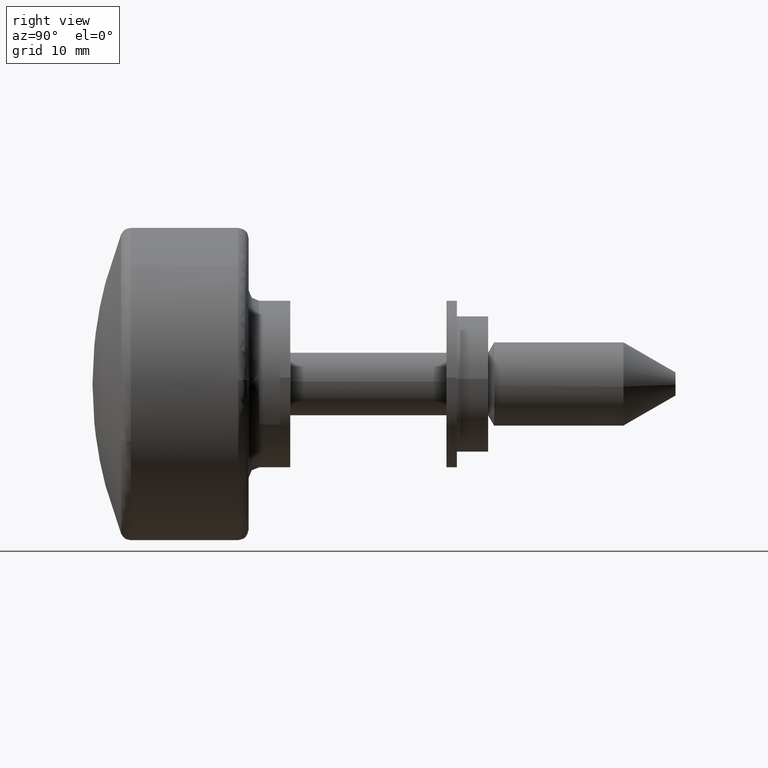
[diagram: clean part render]
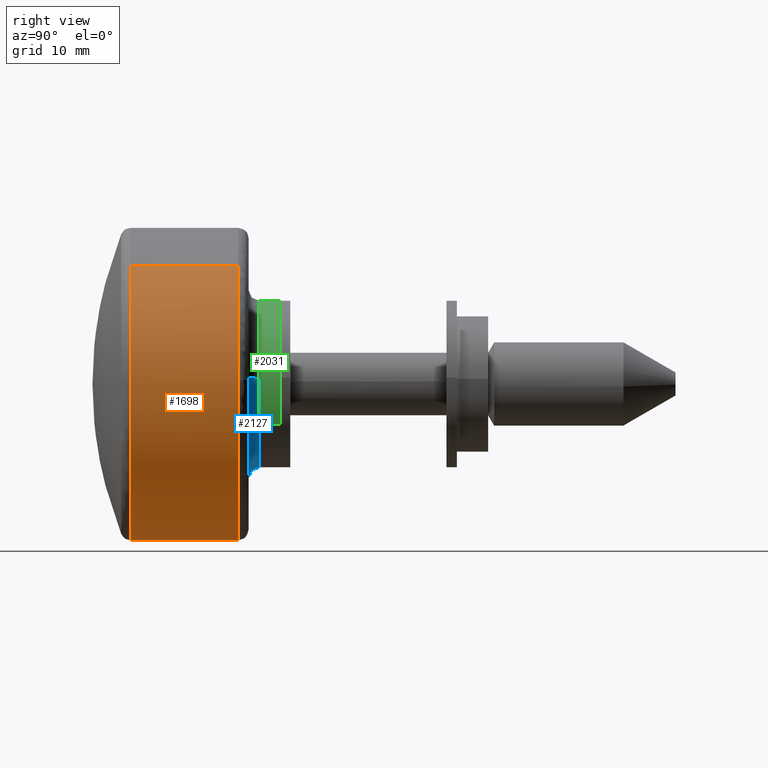
[diagram: same view with three faces highlighted in distinct colors, each labeled with its STEP entity id]
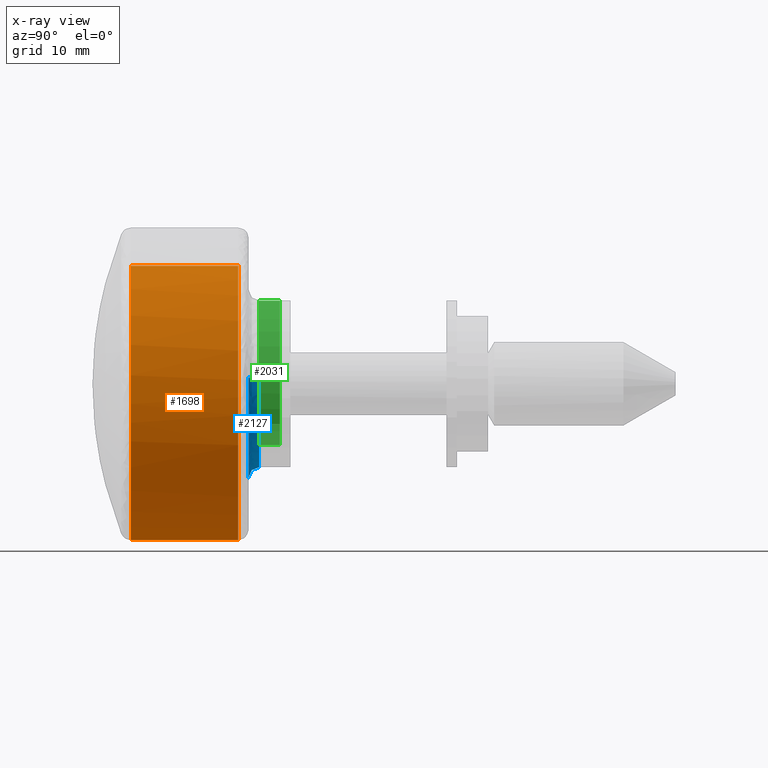
[diagram: x-ray of the same camera — body ghosted, the three highlighted faces saturated]
A machine part, right view with three faces highlighted in distinct colors.
The next image is the same camera in x-ray (body ghosted, the three faces saturated) — at least one of them is partly hidden behind the body in this view.
Their STEP definitions:

[orange] entity #1698 — the highlighted face is a freeform B-spline surface patch.
#1566=CARTESIAN_POINT('',(-14.585219552045698,-9.815094855040570,11.343011636534447));
#1567=CARTESIAN_POINT('',(-14.585219552045697,-10.472148208553696,10.774464129381920));
#1568=CARTESIAN_POINT('',(-14.585219552045690,-11.059160052151860,10.133853114234901));
#1569=CARTESIAN_POINT('',(-14.585219552045695,-21.193013166386756,-0.925306937916956));
#1570=CARTESIAN_POINT('',(-14.585219552045690,-10.133853114234901,-11.059160052151860));
#1571=CARTESIAN_POINT('',(-14.585219552045695,0.925306937916956,-21.193013166386756));
#1572=CARTESIAN_POINT('',(-14.585219552045690,11.059160052151860,-10.133853114234901));
#1573=CARTESIAN_POINT('',(-3.735369510892367,-9.815094855040570,11.343011636534447));
#1574=CARTESIAN_POINT('',(-3.735369510892367,-10.472148208553696,10.774464129381920));
#1575=CARTESIAN_POINT('',(-3.735369510892367,-11.059160052151860,10.133853114234901));
#1576=CARTESIAN_POINT('',(-3.735369510892367,-21.193013166386756,-0.925306937916956));
#1577=CARTESIAN_POINT('',(-3.735369510892367,-10.133853114234901,-11.059160052151860));
#1578=CARTESIAN_POINT('',(-3.735369510892367,0.925306937916956,-21.193013166386756));
#1579=CARTESIAN_POINT('',(-3.735369510892367,11.059160052151860,-10.133853114234901));
#1587=(BOUNDED_SURFACE()B_SPLINE_SURFACE(2,1,((#1566,#1573),(#1567,#1574),(#1568,#1575),(#1569,#1576),(#1570,#1577),(#1571,#1578),(#1572,#1579)),.UNSPECIFIED.,.F.,.F.,.U.)B_SPLINE_SURFACE_WITH_KNOTS((3,2,2,3),(2,2),(0.0,1.988225099390858,26.841038841776552,51.693852584162236),(0.0,10.849850041153330),.UNSPECIFIED.)GEOMETRIC_REPRESENTATION_ITEM()RATIONAL_B_SPLINE_SURFACE(((0.956886118190660,0.956886118190660),(0.976568542494924,0.976568542494924),(1.0,1.0),(0.707106781186548,0.707106781186548),(1.0,1.0),(0.707106781186548,0.707106781186548),(1.0,1.0)))REPRESENTATION_ITEM('')SURFACE());
#1588=CARTESIAN_POINT('',(-3.999999999700985,-14.995262839248941,0.376951431672074));
#1589=VERTEX_POINT('',#1588);
#1590=CARTESIAN_POINT('',(-3.999999999925209,-9.815093350540721,11.343012938373400));
#1591=VERTEX_POINT('',#1590);
#1592=CARTESIAN_POINT('',(-3.999999999700986,-14.995262839248941,0.376951431672074));
#1593=CARTESIAN_POINT('',(-3.999999999836512,-14.828652067788219,7.004787539563752));
#1594=CARTESIAN_POINT('',(-3.999999999925208,-9.815093350540721,11.343012938373393));
#1602=(BOUNDED_CURVE()B_SPLINE_CURVE(2,(#1592,#1593,#1594),.UNSPECIFIED.,.F.,.U.)B_SPLINE_CURVE_WITH_KNOTS((3,3),(0.254420108230706,0.385882139987994),.UNSPECIFIED.)CURVE()GEOMETRIC_REPRESENTATION_ITEM()RATIONAL_B_SPLINE_CURVE((0.989826157680415,0.841254994017907,0.854663300970512))REPRESENTATION_ITEM(''));
#1603=EDGE_CURVE('',#1589,#1591,#1602,.T.);
#1604=ORIENTED_EDGE('',*,*,#1603,.T.);
#1605=CARTESIAN_POINT('',(-14.327043465311441,-9.815093299917354,11.343012982180401));
#1606=VERTEX_POINT('',#1605);
#1607=CARTESIAN_POINT('',(-14.327043465311441,-9.815093299917354,11.343012982180401));
#1608=CARTESIAN_POINT('',(-3.999999999925209,-9.815093350540721,11.343012938373400));
#1609=QUASI_UNIFORM_CURVE('',1,(#1607,#1608),.UNSPECIFIED.,.F.,.U.);
#1610=EDGE_CURVE('',#1606,#1591,#1609,.T.);
#1611=ORIENTED_EDGE('',*,*,#1610,.F.);
#1612=CARTESIAN_POINT('',(-14.327043465396320,-13.946647288321740,-5.521868290275296));
#1613=VERTEX_POINT('',#1612);
#1614=CARTESIAN_POINT('',(-14.327043465311441,-9.815093299917352,11.343012982180403));
#1615=CARTESIAN_POINT('',(-14.327043465311437,-14.999999999999998,6.856520452142475));
#1616=CARTESIAN_POINT('',(-14.327043465311441,-15.0,0.0));
#1617=CARTESIAN_POINT('',(-14.327043465311439,-14.999999999999998,-2.861403033284198));
#1618=CARTESIAN_POINT('',(-14.327043465396327,-13.946647288321737,-5.521868290275296));
#1626=(BOUNDED_CURVE()B_SPLINE_CURVE(2,(#1614,#1615,#1616,#1617,#1618),.UNSPECIFIED.,.F.,.U.)B_SPLINE_CURVE_WITH_KNOTS((3,2,3),(0.614117859337742,0.750000000000000,0.812505050763818),.UNSPECIFIED.)CURVE()GEOMETRIC_REPRESENTATION_ITEM()RATIONAL_B_SPLINE_CURVE((0.854663301108053,0.840804169768676,1.0,0.926770777958748,0.890159125846163))REPRESENTATION_ITEM(''));
#1627=EDGE_CURVE('',#1606,#1613,#1626,.T.);
#1628=ORIENTED_EDGE('',*,*,#1627,.T.);
#1629=CARTESIAN_POINT('',(-14.327043465311441,0.0,-15.0));
#1630=VERTEX_POINT('',#1629);
#1631=CARTESIAN_POINT('',(-14.327043465396327,-13.946647288321737,-5.521868290275297));
#1632=CARTESIAN_POINT('',(-14.327043465311442,-10.193989473359830,-15.000000000000002));
#1633=CARTESIAN_POINT('',(-14.327043465311441,0.0,-15.0));
#1641=(BOUNDED_CURVE()B_SPLINE_CURVE(2,(#1631,#1632,#1633),.UNSPECIFIED.,.F.,.U.)B_SPLINE_CURVE_WITH_KNOTS((3,3),(0.812505050763819,1.0),.UNSPECIFIED.)CURVE()GEOMETRIC_REPRESENTATION_ITEM()RATIONAL_B_SPLINE_CURVE((0.890159125846163,0.780336003227800,1.0))REPRESENTATION_ITEM(''));
#1642=EDGE_CURVE('',#1613,#1630,#1641,.T.);
#1643=ORIENTED_EDGE('',*,*,#1642,.T.);
#1644=CARTESIAN_POINT('',(-14.327043465311441,11.059160102392720,-10.133853059406620));
#1645=VERTEX_POINT('',#1644);
#1646=CARTESIAN_POINT('',(-14.327043465311441,0.0,-15.0));
#1647=CARTESIAN_POINT('',(-14.327043465311444,6.600158052141305,-15.000000000000002));
#1648=CARTESIAN_POINT('',(-14.327043465311441,11.059160102392719,-10.133853059406624));
#1656=(BOUNDED_CURVE()B_SPLINE_CURVE(2,(#1646,#1647,#1648),.UNSPECIFIED.,.F.,.U.)B_SPLINE_CURVE_WITH_KNOTS((3,3),(0.0,0.131584792412767),.UNSPECIFIED.)CURVE()GEOMETRIC_REPRESENTATION_ITEM()RATIONAL_B_SPLINE_CURVE((1.0,0.845838826413299,0.853959781022715))REPRESENTATION_ITEM(''));
#1657=EDGE_CURVE('',#1630,#1645,#1656,.T.);
#1658=ORIENTED_EDGE('',*,*,#1657,.T.);
#1659=CARTESIAN_POINT('',(-3.999999999900494,11.059160731184599,-10.133852373197030));
#1660=VERTEX_POINT('',#1659);
#1661=CARTESIAN_POINT('',(-14.327043465311441,11.059160102392720,-10.133853059406620));
#1662=CARTESIAN_POINT('',(-3.999999999900494,11.059160731184599,-10.133852373197030));
#1663=QUASI_UNIFORM_CURVE('',1,(#1661,#1662),.UNSPECIFIED.,.F.,.U.);
#1664=EDGE_CURVE('',#1645,#1660,#1663,.T.);
#1665=ORIENTED_EDGE('',*,*,#1664,.T.);
#1666=CARTESIAN_POINT('',(-4.0,0.0,-15.0));
#1667=VERTEX_POINT('',#1666);
#1668=CARTESIAN_POINT('',(-3.999999999900494,11.059160731184601,-10.133852373197035));
#1669=CARTESIAN_POINT('',(-4.0,6.600158563221535,-15.0));
#1670=CARTESIAN_POINT('',(-4.0,0.0,-15.0));
#1678=(BOUNDED_CURVE()B_SPLINE_CURVE(2,(#1668,#1669,#1670),.UNSPECIFIED.,.F.,.U.)B_SPLINE_CURVE_WITH_KNOTS((3,3),(0.868415198968805,1.0),.UNSPECIFIED.)CURVE()GEOMETRIC_REPRESENTATION_ITEM()RATIONAL_B_SPLINE_CURVE((0.853959782086514,0.845838816316183,1.0))REPRESENTATION_ITEM(''));
#1679=EDGE_CURVE('',#1660,#1667,#1678,.T.);
#1680=ORIENTED_EDGE('',*,*,#1679,.T.);
#1681=CARTESIAN_POINT('',(-4.0,0.0,-15.0));
#1682=CARTESIAN_POINT('',(-4.0,-14.999999999999996,-14.999999999999996));
#1683=CARTESIAN_POINT('',(-4.0,-15.0,0.0));
#1684=CARTESIAN_POINT('',(-4.0,-15.000000000000004,0.188505481872718));
#1685=CARTESIAN_POINT('',(-3.999999999700985,-14.995262839248943,0.376951431672074));
#1693=(BOUNDED_CURVE()B_SPLINE_CURVE(2,(#1681,#1682,#1683,#1684,#1685),.UNSPECIFIED.,.F.,.U.)B_SPLINE_CURVE_WITH_KNOTS((3,2,3),(0.0,0.250000000000000,0.254420108230706),.UNSPECIFIED.)CURVE()GEOMETRIC_REPRESENTATION_ITEM()RATIONAL_B_SPLINE_CURVE((1.0,0.707106781186547,1.0,0.994821521091218,0.989826157680415))REPRESENTATION_ITEM(''));
#1694=EDGE_CURVE('',#1667,#1589,#1693,.T.);
#1695=ORIENTED_EDGE('',*,*,#1694,.T.);
#1696=EDGE_LOOP('',(#1604,#1611,#1628,#1643,#1658,#1665,#1680,#1695));
#1697=FACE_OUTER_BOUND('',#1696,.T.);
#1698=ADVANCED_FACE('',(#1697),#1587,.T.);

[blue] entity #2127 — the highlighted face is a freeform B-spline surface patch.
#1834=CARTESIAN_POINT('',(-2.0,-6.999571419543427,-3.873757858037954));
#1835=VERTEX_POINT('',#1834);
#1836=CARTESIAN_POINT('',(-2.0,0.0,-8.0));
#1837=VERTEX_POINT('',#1836);
#1838=CARTESIAN_POINT('',(-2.000000000000000,-6.999571419543426,-3.873757858037954));
#1839=CARTESIAN_POINT('',(-2.0,-4.715994045508836,-8.0));
#1840=CARTESIAN_POINT('',(-2.0,0.0,-8.0));
#1848=(BOUNDED_CURVE()B_SPLINE_CURVE(2,(#1838,#1839,#1840),.UNSPECIFIED.,.F.,.U.)B_SPLINE_CURVE_WITH_KNOTS((3,3),(0.832484288970769,1.0),.UNSPECIFIED.)CURVE()GEOMETRIC_REPRESENTATION_ITEM()RATIONAL_B_SPLINE_CURVE((0.870495137452855,0.803743136779298,1.0))REPRESENTATION_ITEM(''));
#1849=EDGE_CURVE('',#1835,#1837,#1848,.T.);
#1851=CARTESIAN_POINT('',(-2.000000000087946,5.404720715416680,-5.898219560874479));
#1852=VERTEX_POINT('',#1851);
#1853=CARTESIAN_POINT('',(-2.0,0.0,-8.0));
#1854=CARTESIAN_POINT('',(-2.000000000000000,3.111029116636516,-8.0));
#1855=CARTESIAN_POINT('',(-2.000000000087946,5.404720715416680,-5.898219560874479));
#1863=(BOUNDED_CURVE()B_SPLINE_CURVE(2,(#1853,#1854,#1855),.UNSPECIFIED.,.F.,.U.)B_SPLINE_CURVE_WITH_KNOTS((3,3),(0.0,0.118415184884469),.UNSPECIFIED.)CURVE()GEOMETRIC_REPRESENTATION_ITEM()RATIONAL_B_SPLINE_CURVE((1.0,0.861267981371191,0.853959783824990))REPRESENTATION_ITEM(''));
#1864=EDGE_CURVE('',#1837,#1852,#1863,.T.);
#1933=CARTESIAN_POINT('',(-2.000000000329071,-7.980525390720741,0.557866012642415));
#1934=VERTEX_POINT('',#1933);
#1935=CARTESIAN_POINT('',(-2.000000000329071,-7.980525390720741,0.557866012642415));
#1936=CARTESIAN_POINT('',(-2.000000000000000,-8.0,0.279272927036713));
#1937=CARTESIAN_POINT('',(-2.0,-8.0,0.0));
#1938=CARTESIAN_POINT('',(-2.000000000000000,-8.0,-2.066063222576611));
#1939=CARTESIAN_POINT('',(-2.000000000000000,-6.999571419543427,-3.873757858037954));
#1947=(BOUNDED_CURVE()B_SPLINE_CURVE(2,(#1935,#1936,#1937,#1938,#1939),.UNSPECIFIED.,.F.,.U.)B_SPLINE_CURVE_WITH_KNOTS((3,2,3),(0.737833686533459,0.750000000000000,0.832484288970768),.UNSPECIFIED.)CURVE()GEOMETRIC_REPRESENTATION_ITEM()RATIONAL_B_SPLINE_CURVE((0.972879876383523,0.985746277150765,1.0,0.903363644407251,0.870495137452856))REPRESENTATION_ITEM(''));
#1948=EDGE_CURVE('',#1934,#1835,#1947,.T.);
#1984=CARTESIAN_POINT('',(-2.000000000330549,7.999368353630027,-0.100528319106682));
#1985=VERTEX_POINT('',#1984);
#1986=CARTESIAN_POINT('',(-2.000000000087946,5.404720715416680,-5.898219560874479));
#1987=CARTESIAN_POINT('',(-2.000000000185768,7.955886685277696,-3.560507404936464));
#1988=CARTESIAN_POINT('',(-2.000000000330549,7.999368353630027,-0.100528319106682));
#1996=(BOUNDED_CURVE()B_SPLINE_CURVE(2,(#1986,#1987,#1988),.UNSPECIFIED.,.F.,.U.)B_SPLINE_CURVE_WITH_KNOTS((3,3),(0.118415184884469,0.247784295919976),.UNSPECIFIED.)CURVE()GEOMETRIC_REPRESENTATION_ITEM()RATIONAL_B_SPLINE_CURVE((0.853959783824990,0.845975545817455,0.994854295639978))REPRESENTATION_ITEM(''));
#1997=EDGE_CURVE('',#1852,#1985,#1996,.T.);
#2032=CARTESIAN_POINT('',(-1.930462882457109,-7.982940164000940,0.558034370785872));
#2033=CARTESIAN_POINT('',(-1.930462882457109,-7.998910852533643,0.329566273462526));
#2034=CARTESIAN_POINT('',(-1.930462882457108,-8.001788797602575,0.100558736863972));
#2035=CARTESIAN_POINT('',(-1.930462882457109,-8.102347534466546,-7.901230060738604));
#2036=CARTESIAN_POINT('',(-1.930462882457108,-0.100558736863972,-8.001788797602575));
#2037=CARTESIAN_POINT('',(-1.930462882457109,7.901230060738602,-8.102347534466546));
#2038=CARTESIAN_POINT('',(-1.930462882457108,8.001788797602575,-0.100558736863973));
#2039=CARTESIAN_POINT('',(-3.077537380434425,-7.903177004204340,0.552458657605694));
#2040=CARTESIAN_POINT('',(-3.077537380434425,-7.918988118375302,0.326273345444313));
#2041=CARTESIAN_POINT('',(-3.077537380434425,-7.921837307874517,0.099553983924247));
#2042=CARTESIAN_POINT('',(-3.077537380434424,-8.021391291798761,-7.822283323950267));
#2043=CARTESIAN_POINT('',(-3.077537380434425,-0.099553983924248,-7.921837307874517));
#2044=CARTESIAN_POINT('',(-3.077537380434424,7.822283323950267,-8.021391291798764));
#2045=CARTESIAN_POINT('',(-3.077537380434425,7.921837307874517,-0.099553983924248));
#2046=CARTESIAN_POINT('',(-2.997579351180474,-9.047459137396228,0.632447827896207));
#2047=CARTESIAN_POINT('',(-2.997579351180475,-9.065559505046146,0.373513684301719));
#2048=CARTESIAN_POINT('',(-2.997579351180474,-9.068821221891806,0.113968167616702));
#2049=CARTESIAN_POINT('',(-2.997579351180475,-9.182789389508510,-8.954853054275105));
#2050=CARTESIAN_POINT('',(-2.997579351180474,-0.113968167616703,-9.068821221891806));
#2051=CARTESIAN_POINT('',(-2.997579351180475,8.954853054275105,-9.182789389508512));
#2052=CARTESIAN_POINT('',(-2.997579351180474,9.068821221891806,-0.113968167616703));
#2060=(BOUNDED_SURFACE()B_SPLINE_SURFACE(2,2,((#2032,#2039,#2046),(#2033,#2040,#2047),(#2034,#2041,#2048),(#2035,#2042,#2049),(#2036,#2043,#2050),(#2037,#2044,#2051),(#2038,#2045,#2052)),.UNSPECIFIED.,.F.,.F.,.U.)B_SPLINE_SURFACE_WITH_KNOTS((3,2,2,3),(3,3),(0.0,0.601075484383022,15.627976924728539,30.654878365074062),(0.0,1.822374170355887),.UNSPECIFIED.)GEOMETRIC_REPRESENTATION_ITEM()RATIONAL_B_SPLINE_SURFACE(((0.889999303352454,0.584039722868744,0.889999383380160),(0.899812874413934,0.590479632766999,0.899812955324064),(0.910479798596171,0.597479534249830,0.910479880465459),(0.643806439720715,0.422481830288235,0.643806497611043),(0.910479798596171,0.597479534249830,0.910479880465459),(0.643806439720715,0.422481830288235,0.643806497611043),(0.910479798596171,0.597479534249830,0.910479880465459)))REPRESENTATION_ITEM('')SURFACE());
#2061=CARTESIAN_POINT('',(-3.0,0.0,-9.0));
#2062=VERTEX_POINT('',#2061);
#2063=CARTESIAN_POINT('',(-3.0,-8.978091064088599,0.627599264229756));
#2064=VERTEX_POINT('',#2063);
#2065=CARTESIAN_POINT('',(-3.0,0.0,-9.0));
#2066=CARTESIAN_POINT('',(-3.000000000000000,-9.0,-9.0));
#2067=CARTESIAN_POINT('',(-3.0,-9.0,0.0));
#2068=CARTESIAN_POINT('',(-3.000000000000000,-9.0,0.314182042956304));
#2069=CARTESIAN_POINT('',(-3.0,-8.978091064088599,0.627599264229756));
#2077=(BOUNDED_CURVE()B_SPLINE_CURVE(2,(#2065,#2066,#2067,#2068,#2069),.UNSPECIFIED.,.F.,.U.)B_SPLINE_CURVE_WITH_KNOTS((3,2,3),(0.0,0.250000000000000,0.262166313468068),.UNSPECIFIED.)CURVE()GEOMETRIC_REPRESENTATION_ITEM()RATIONAL_B_SPLINE_CURVE((1.0,0.707106781186547,1.0,0.985746277148976,0.972879876380293))REPRESENTATION_ITEM(''));
#2078=EDGE_CURVE('',#2062,#2064,#2077,.T.);
#2079=ORIENTED_EDGE('',*,*,#2078,.F.);
#2080=CARTESIAN_POINT('',(-3.0,8.999289396960204,-0.113094359087471));
#2081=VERTEX_POINT('',#2080);
#2082=CARTESIAN_POINT('',(-3.0,8.999289396960204,-0.113094359087471));
#2083=CARTESIAN_POINT('',(-3.000000000000001,8.887607368872969,-9.0));
#2084=CARTESIAN_POINT('',(-3.0,0.0,-9.0));
#2092=(BOUNDED_CURVE()B_SPLINE_CURVE(2,(#2082,#2083,#2084),.UNSPECIFIED.,.F.,.U.)B_SPLINE_CURVE_WITH_KNOTS((3,3),(0.752215704084066,1.0),.UNSPECIFIED.)CURVE()GEOMETRIC_REPRESENTATION_ITEM()RATIONAL_B_SPLINE_CURVE((0.994854295630675,0.709702639991029,1.0))REPRESENTATION_ITEM(''));
#2093=EDGE_CURVE('',#2081,#2062,#2092,.T.);
#2094=ORIENTED_EDGE('',*,*,#2093,.F.);
#2095=CARTESIAN_POINT('',(-2.000000000330549,7.999368353630027,-0.100528319106682));
#2096=CARTESIAN_POINT('',(-2.999999998255311,7.999368354291571,-0.100528319075128));
#2097=CARTESIAN_POINT('',(-3.000000000000000,8.999289396960204,-0.113094359087471));
#2105=(BOUNDED_CURVE()B_SPLINE_CURVE(2,(#2095,#2096,#2097),.UNSPECIFIED.,.F.,.U.)B_SPLINE_CURVE_WITH_KNOTS((3,3),(-1.725134642603862,-0.274865358507356),.UNSPECIFIED.)CURVE()GEOMETRIC_REPRESENTATION_ITEM()RATIONAL_B_SPLINE_CURVE((0.883342149411169,0.624617224567710,0.883342149014691))REPRESENTATION_ITEM(''));
#2106=EDGE_CURVE('',#1985,#2081,#2105,.T.);
#2107=ORIENTED_EDGE('',*,*,#2106,.F.);
#2108=ORIENTED_EDGE('',*,*,#1997,.F.);
#2109=ORIENTED_EDGE('',*,*,#1864,.F.);
#2110=ORIENTED_EDGE('',*,*,#1849,.F.);
#2111=ORIENTED_EDGE('',*,*,#1948,.F.);
#2112=CARTESIAN_POINT('',(-2.000000000329071,-7.980525390720741,0.557866012642415));
#2113=CARTESIAN_POINT('',(-2.999999999058812,-7.980525391379996,0.557866012649432));
#2114=CARTESIAN_POINT('',(-3.0,-8.978091064088599,0.627599264229756));
#2122=(BOUNDED_CURVE()B_SPLINE_CURVE(2,(#2112,#2113,#2114),.UNSPECIFIED.,.F.,.U.)B_SPLINE_CURVE_WITH_KNOTS((3,3),(-1.725134642606894,-0.274865357683369),.UNSPECIFIED.)CURVE()GEOMETRIC_REPRESENTATION_ITEM()RATIONAL_B_SPLINE_CURVE((0.863472075137311,0.610566960147269,0.863472075036076))REPRESENTATION_ITEM(''));
#2123=EDGE_CURVE('',#1934,#2064,#2122,.T.);
#2124=ORIENTED_EDGE('',*,*,#2123,.T.);
#2125=EDGE_LOOP('',(#2079,#2094,#2107,#2108,#2109,#2110,#2111,#2124));
#2126=FACE_OUTER_BOUND('',#2125,.T.);
#2127=ADVANCED_FACE('',(#2126),#2060,.F.);

[green] entity #2031 — the highlighted face is a freeform B-spline surface patch.
#1834=CARTESIAN_POINT('',(-2.0,-6.999571419543427,-3.873757858037954));
#1835=VERTEX_POINT('',#1834);
#1851=CARTESIAN_POINT('',(-2.000000000087946,5.404720715416680,-5.898219560874479));
#1852=VERTEX_POINT('',#1851);
#1866=CARTESIAN_POINT('',(0.0,5.404720718897659,-5.898219557689992));
#1867=VERTEX_POINT('',#1866);
#1868=CARTESIAN_POINT('',(-2.000000000087946,5.404720715416680,-5.898219560874479));
#1869=CARTESIAN_POINT('',(0.0,5.404720718897659,-5.898219557689992));
#1870=QUASI_UNIFORM_CURVE('',1,(#1868,#1869),.UNSPECIFIED.,.F.,.U.);
#1871=EDGE_CURVE('',#1852,#1867,#1870,.T.);
#1888=CARTESIAN_POINT('',(-1.167441E-016,-6.999575342346139,-3.873750769829453));
#1889=VERTEX_POINT('',#1888);
#1903=CARTESIAN_POINT('',(-2.0,-6.999571419543427,-3.873757858037954));
#1904=CARTESIAN_POINT('',(-1.167441E-016,-6.999575342346139,-3.873750769829453));
#1905=QUASI_UNIFORM_CURVE('',1,(#1903,#1904),.UNSPECIFIED.,.F.,.U.);
#1906=EDGE_CURVE('',#1835,#1889,#1905,.T.);
#1911=CARTESIAN_POINT('',(-2.050000000338813,5.404721660925281,-5.898218694480990));
#1912=CARTESIAN_POINT('',(-2.050000000338812,11.302940355406271,-0.493497033555709));
#1913=CARTESIAN_POINT('',(-2.050000000338813,5.898218694480990,5.404721660925281));
#1914=CARTESIAN_POINT('',(-2.050000000338812,0.493497033555709,11.302940355406271));
#1915=CARTESIAN_POINT('',(-2.050000000338813,-5.404721660925281,5.898218694480990));
#1916=CARTESIAN_POINT('',(-2.050000000338812,-10.051278656166360,1.640433667892859));
#1917=CARTESIAN_POINT('',(-2.050000000338813,-6.999571419545042,-3.873757858035035));
#1918=CARTESIAN_POINT('',(0.051250000008470,5.404721660925281,-5.898218694480990));
#1919=CARTESIAN_POINT('',(0.051250000008470,11.302940355406271,-0.493497033555709));
#1920=CARTESIAN_POINT('',(0.051250000008470,5.898218694480990,5.404721660925281));
#1921=CARTESIAN_POINT('',(0.051250000008470,0.493497033555709,11.302940355406271));
#1922=CARTESIAN_POINT('',(0.051250000008470,-5.404721660925281,5.898218694480990));
#1923=CARTESIAN_POINT('',(0.051250000008470,-10.051278656166360,1.640433667892859));
#1924=CARTESIAN_POINT('',(0.051250000008470,-6.999571419545042,-3.873757858035035));
#1932=(BOUNDED_SURFACE()B_SPLINE_SURFACE(2,1,((#1911,#1918),(#1912,#1919),(#1913,#1920),(#1914,#1921),(#1915,#1922),(#1916,#1923),(#1917,#1924)),.UNSPECIFIED.,.F.,.F.,.U.)B_SPLINE_SURFACE_WITH_KNOTS((3,2,2,3),(2,2),(0.0,13.254833995939039,26.509667991878079,37.643728548466868),(0.0,2.101250000347283),.UNSPECIFIED.)GEOMETRIC_REPRESENTATION_ITEM()RATIONAL_B_SPLINE_SURFACE(((1.0,1.0),(0.707106781186548,0.707106781186548),(1.0,1.0),(0.707106781186548,0.707106781186548),(1.0,1.0),(0.753969696196700,0.753969696196700),(0.921270302782944,0.921270302782944)))REPRESENTATION_ITEM('')SURFACE());
#1933=CARTESIAN_POINT('',(-2.000000000329071,-7.980525390720741,0.557866012642415));
#1934=VERTEX_POINT('',#1933);
#1935=CARTESIAN_POINT('',(-2.000000000329071,-7.980525390720741,0.557866012642415));
#1936=CARTESIAN_POINT('',(-2.000000000000000,-8.0,0.279272927036713));
#1937=CARTESIAN_POINT('',(-2.0,-8.0,0.0));
#1938=CARTESIAN_POINT('',(-2.000000000000000,-8.0,-2.066063222576611));
#1939=CARTESIAN_POINT('',(-2.000000000000000,-6.999571419543427,-3.873757858037954));
#1947=(BOUNDED_CURVE()B_SPLINE_CURVE(2,(#1935,#1936,#1937,#1938,#1939),.UNSPECIFIED.,.F.,.U.)B_SPLINE_CURVE_WITH_KNOTS((3,2,3),(0.737833686533459,0.750000000000000,0.832484288970768),.UNSPECIFIED.)CURVE()GEOMETRIC_REPRESENTATION_ITEM()RATIONAL_B_SPLINE_CURVE((0.972879876383523,0.985746277150765,1.0,0.903363644407251,0.870495137452856))REPRESENTATION_ITEM(''));
#1948=EDGE_CURVE('',#1934,#1835,#1947,.T.);
#1949=ORIENTED_EDGE('',*,*,#1948,.T.);
#1950=ORIENTED_EDGE('',*,*,#1906,.T.);
#1951=CARTESIAN_POINT('',(0.0,0.0,8.0));
#1952=VERTEX_POINT('',#1951);
#1953=CARTESIAN_POINT('',(0.0,0.0,8.0));
#1954=CARTESIAN_POINT('',(0.0,-8.0,8.0));
#1955=CARTESIAN_POINT('',(0.0,-8.0,0.0));
#1956=CARTESIAN_POINT('',(0.0,-8.0,-2.066058901758005));
#1957=CARTESIAN_POINT('',(-1.167441E-016,-6.999575342346139,-3.873750769829454));
#1965=(BOUNDED_CURVE()B_SPLINE_CURVE(2,(#1953,#1954,#1955,#1956,#1957),.UNSPECIFIED.,.F.,.U.)B_SPLINE_CURVE_WITH_KNOTS((3,2,3),(0.0,0.250000000000000,0.332484133138871),.UNSPECIFIED.)CURVE()GEOMETRIC_REPRESENTATION_ITEM()RATIONAL_B_SPLINE_CURVE((1.0,0.707106781186548,1.0,0.903363826975675,0.870495261645505))REPRESENTATION_ITEM(''));
#1966=EDGE_CURVE('',#1952,#1889,#1965,.T.);
#1967=ORIENTED_EDGE('',*,*,#1966,.F.);
#1968=CARTESIAN_POINT('',(0.0,5.404720718897659,-5.898219557689993));
#1969=CARTESIAN_POINT('',(0.0,8.0,-3.520085009678637));
#1970=CARTESIAN_POINT('',(0.0,8.0,0.0));
#1971=CARTESIAN_POINT('',(0.0,8.0,8.0));
#1972=CARTESIAN_POINT('',(0.0,0.0,8.0));
#1980=(BOUNDED_CURVE()B_SPLINE_CURVE(2,(#1968,#1969,#1970,#1971,#1972),.UNSPECIFIED.,.F.,.U.)B_SPLINE_CURVE_WITH_KNOTS((3,2,3),(0.618415184973632,0.750000000000000,1.0),.UNSPECIFIED.)CURVE()GEOMETRIC_REPRESENTATION_ITEM()RATIONAL_B_SPLINE_CURVE((0.853959783813985,0.845838799919817,1.0,0.707106781186548,1.0))REPRESENTATION_ITEM(''));
#1981=EDGE_CURVE('',#1867,#1952,#1980,.T.);
#1982=ORIENTED_EDGE('',*,*,#1981,.F.);
#1983=ORIENTED_EDGE('',*,*,#1871,.F.);
#1984=CARTESIAN_POINT('',(-2.000000000330549,7.999368353630027,-0.100528319106682));
#1985=VERTEX_POINT('',#1984);
#1986=CARTESIAN_POINT('',(-2.000000000087946,5.404720715416680,-5.898219560874479));
#1987=CARTESIAN_POINT('',(-2.000000000185768,7.955886685277696,-3.560507404936464));
#1988=CARTESIAN_POINT('',(-2.000000000330549,7.999368353630027,-0.100528319106682));
#1996=(BOUNDED_CURVE()B_SPLINE_CURVE(2,(#1986,#1987,#1988),.UNSPECIFIED.,.F.,.U.)B_SPLINE_CURVE_WITH_KNOTS((3,3),(0.118415184884469,0.247784295919976),.UNSPECIFIED.)CURVE()GEOMETRIC_REPRESENTATION_ITEM()RATIONAL_B_SPLINE_CURVE((0.853959783824990,0.845975545817455,0.994854295639978))REPRESENTATION_ITEM(''));
#1997=EDGE_CURVE('',#1852,#1985,#1996,.T.);
#1998=ORIENTED_EDGE('',*,*,#1997,.T.);
#1999=CARTESIAN_POINT('',(-2.0,0.0,8.0));
#2000=VERTEX_POINT('',#1999);
#2001=CARTESIAN_POINT('',(-2.000000000330549,7.999368353630027,-0.100528319106682));
#2002=CARTESIAN_POINT('',(-2.000000000000000,8.0,-0.050266143974984));
#2003=CARTESIAN_POINT('',(-2.0,8.0,0.0));
#2004=CARTESIAN_POINT('',(-2.000000000000000,8.0,8.0));
#2005=CARTESIAN_POINT('',(-2.0,0.0,8.0));
#2013=(BOUNDED_CURVE()B_SPLINE_CURVE(2,(#2001,#2002,#2003,#2004,#2005),.UNSPECIFIED.,.F.,.U.)B_SPLINE_CURVE_WITH_KNOTS((3,2,3),(0.247784295919976,0.250000000000000,0.500000000000000),.UNSPECIFIED.)CURVE()GEOMETRIC_REPRESENTATION_ITEM()RATIONAL_B_SPLINE_CURVE((0.994854295639978,0.997404141200254,1.0,0.707106781186548,1.0))REPRESENTATION_ITEM(''));
#2014=EDGE_CURVE('',#1985,#2000,#2013,.T.);
#2015=ORIENTED_EDGE('',*,*,#2014,.T.);
#2016=CARTESIAN_POINT('',(-2.0,0.0,8.0));
#2017=CARTESIAN_POINT('',(-2.0,-7.460294778060123,8.0));
#2018=CARTESIAN_POINT('',(-2.000000000329071,-7.980525390720741,0.557866012642415));
#2026=(BOUNDED_CURVE()B_SPLINE_CURVE(2,(#2016,#2017,#2018),.UNSPECIFIED.,.F.,.U.)B_SPLINE_CURVE_WITH_KNOTS((3,3),(0.500000000000000,0.737833686533460),.UNSPECIFIED.)CURVE()GEOMETRIC_REPRESENTATION_ITEM()RATIONAL_B_SPLINE_CURVE((1.0,0.721360504035781,0.972879876383524))REPRESENTATION_ITEM(''));
#2027=EDGE_CURVE('',#2000,#1934,#2026,.T.);
#2028=ORIENTED_EDGE('',*,*,#2027,.T.);
#2029=EDGE_LOOP('',(#1949,#1950,#1967,#1982,#1983,#1998,#2015,#2028));
#2030=FACE_OUTER_BOUND('',#2029,.T.);
#2031=ADVANCED_FACE('',(#2030),#1932,.T.);